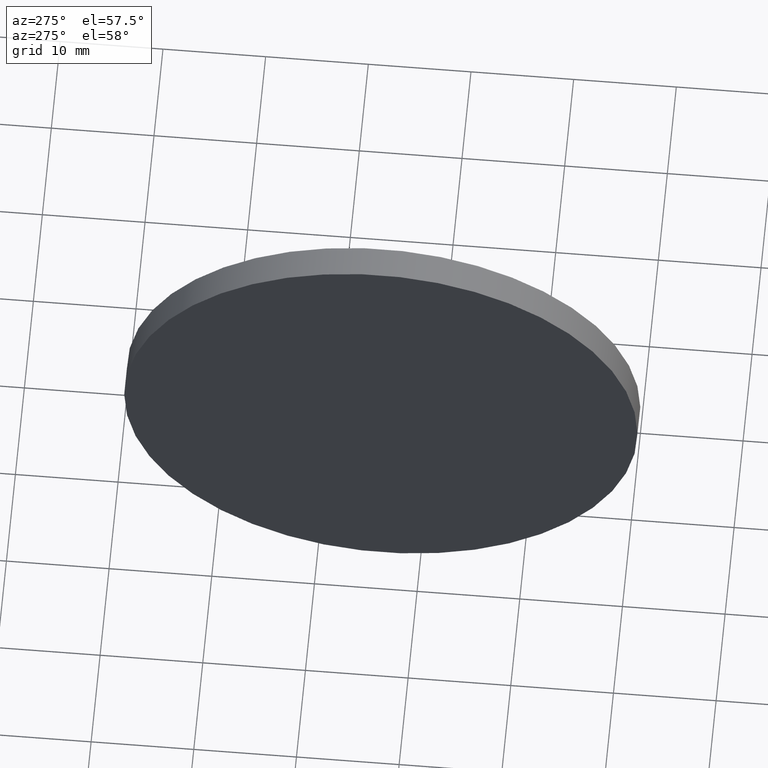
[diagram: clean part render]
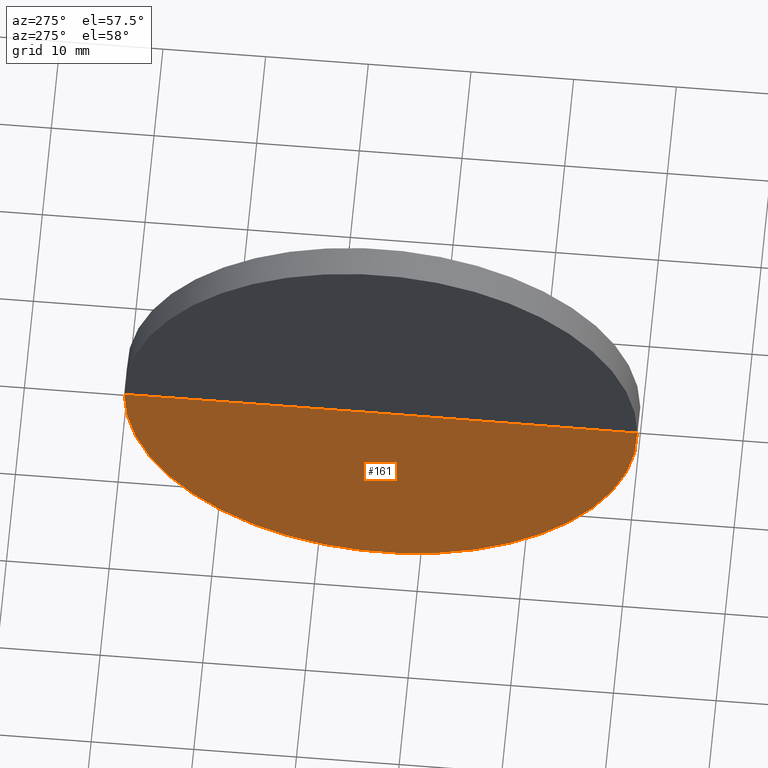
[diagram: same view with one face highlighted and labeled with its STEP entity id]
A machine part, auxiliary view. The second image highlights one B-rep face of the part: STEP entity #161.
In plain terms, the highlighted conical surface has half-angle 89.889 deg.
Its self-contained STEP definition (entity closure, byte-faithful):
#10 = FACE_OUTER_BOUND ( 'NONE', #97, .T. ) ;
#22 = CARTESIAN_POINT ( 'NONE',  ( 453.5491014551880700, -36.15909827298190000, 0.0000000000000000000 ) ) ;
#41 = VECTOR ( 'NONE', #108, 1000.000000000000000 ) ;
#43 = CARTESIAN_POINT ( 'NONE',  ( 453.5976624801175500, -11.15919260026350700, 0.0000000000000000000 ) ) ;
#46 = DIRECTION ( 'NONE',  ( -0.003884881994360192500, -0.9999924538174724800, 0.0000000000000000000 ) ) ;
#49 = DIRECTION ( 'NONE',  ( -0.9999981134525887100, 0.001942444661694015300, -0.0000000000000000000 ) ) ;
#57 = VECTOR ( 'NONE', #46, 1000.000000000000100 ) ;
#61 = VERTEX_POINT ( 'NONE', #135 ) ;
#62 = DIRECTION ( 'NONE',  ( -0.001942444661694166000, -0.9999981134525887100, 0.0000000000000000000 ) ) ;
#64 = VERTEX_POINT ( 'NONE', #43 ) ;
#70 = EDGE_CURVE ( 'NONE', #154, #64, #85, .T. ) ;
#76 = CARTESIAN_POINT ( 'NONE',  ( 453.5491014551880700, -36.15909827298190000, 0.0000000000000000000 ) ) ;
#77 = CONICAL_SURFACE ( 'NONE', #79, 24.99995283631470500, 1.568853880911697000 ) ;
#79 = AXIS2_PLACEMENT_3D ( 'NONE', #76, #138, #62 ) ;
#82 = EDGE_CURVE ( 'NONE', #64, #61, #123, .T. ) ;
#85 = LINE ( 'NONE', #179, #41 ) ;
#93 = CARTESIAN_POINT ( 'NONE',  ( 453.5976624801175500, -36.15919260026350900, 0.0000000000000000000 ) ) ;
#97 = EDGE_LOOP ( 'NONE', ( #172, #144, #170 ) ) ;
#108 = DIRECTION ( 'NONE',  ( -5.876375774871434000E-017, 1.000000000000000000, 1.224644488793104600E-016 ) ) ;
#122 = AXIS2_PLACEMENT_3D ( 'NONE', #22, #49, #141 ) ;
#123 = CIRCLE ( 'NONE', #122, 24.99995283631470500 ) ;
#135 = CARTESIAN_POINT ( 'NONE',  ( 453.5005404302585800, -61.15900394570029900, 3.061611221982759500E-015 ) ) ;
#138 = DIRECTION ( 'NONE',  ( -0.9999981134525887100, 0.001942444661694015300, -0.0000000000000000000 ) ) ;
#141 = DIRECTION ( 'NONE',  ( -0.001942444661694166000, -0.9999981134525887100, 0.0000000000000000000 ) ) ;
#144 = ORIENTED_EDGE ( 'NONE', *, *, #70, .T. ) ;
#149 = LINE ( 'NONE', #168, #57 ) ;
#153 = EDGE_CURVE ( 'NONE', #154, #61, #149, .T. ) ;
#154 = VERTEX_POINT ( 'NONE', #93 ) ;
#161 = ADVANCED_FACE ( 'NONE', ( #10 ), #77, .F. ) ;
#168 = CARTESIAN_POINT ( 'NONE',  ( 453.5005404302585800, -61.15900394570029900, 0.0000000000000000000 ) ) ;
#170 = ORIENTED_EDGE ( 'NONE', *, *, #82, .T. ) ;
#172 = ORIENTED_EDGE ( 'NONE', *, *, #153, .F. ) ;
#179 = CARTESIAN_POINT ( 'NONE',  ( 453.5976624801175500, -11.15919260026350700, 3.061611221982759500E-015 ) ) ;